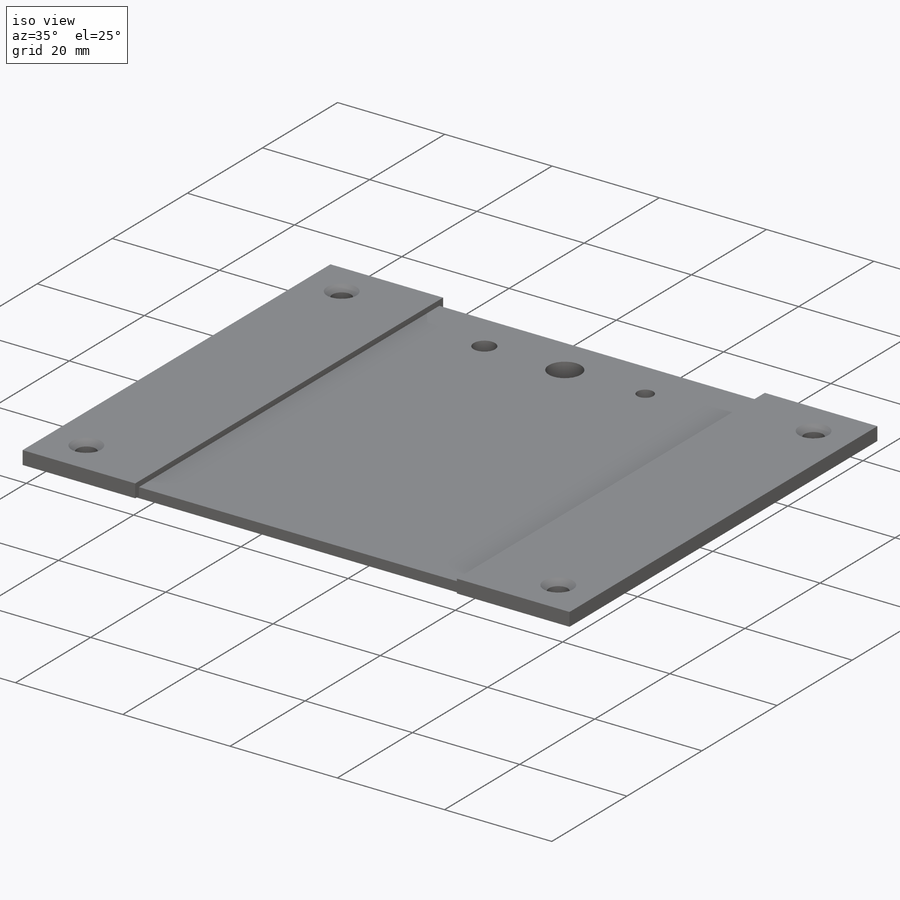
[diagram: iso view]
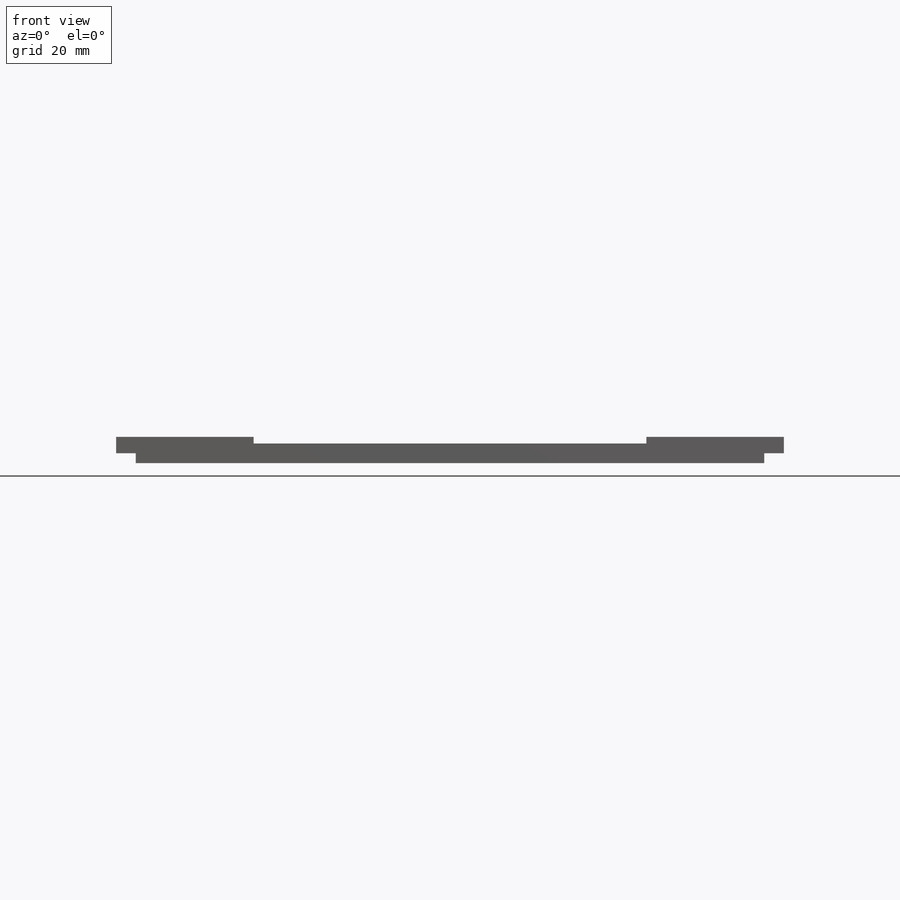
[diagram: front view]
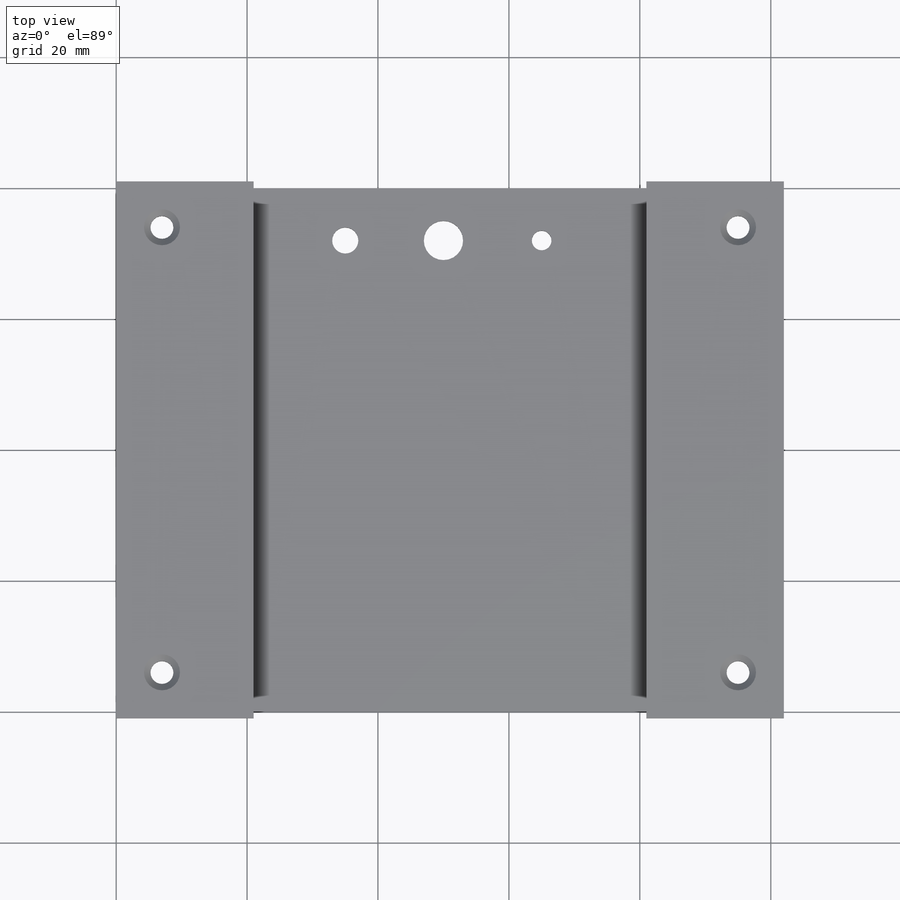
[diagram: top view]
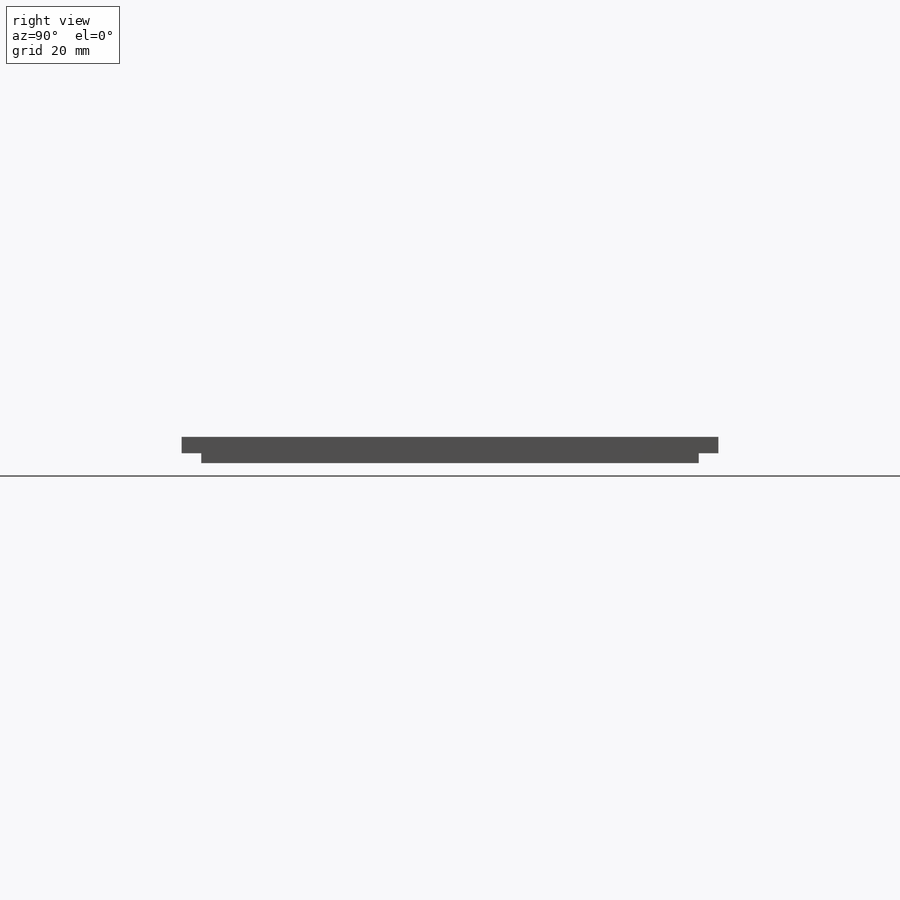
[diagram: right view]
SOLIDWORKS PART (.sldprt)
format: sldprt  version: not decoded by parser v0  size: 511,488 bytes
history: native  units: mm
features: sketch x6, extrude x5, plane x3, material x1, cut_extrude x1, chamfer x1 (+10 scaffold rows collapsed)
feature tree (27):
  scaffold x10  (default folders/planes/origin — collapsed)
  material  "Matériau <non spécifié>"
  plane  "Plan de face"
  plane  "Plan de dessus"
  plane  "Plan de droite"
  sketch  "Esquisse1"  dims[D1=102.0mm D2=80.0mm]
  extrude  "Boss.-Extru.1"  Depth=1.5mm
  sketch  "Esquisse2"  dims[D1=2.0mm D2=3.0mm D3=3.0mm D4=2.0mm]
  extrude  "Boss.-Extru.2"  Depth=1.5mm
  sketch  "Esquisse3"  dims[c1.D1=3.5mm c1.D2=3.5mm c1.D3=3.5mm c1.D4=3.5mm c1.D5=3.5mm c1.D6=3.5mm c1.D7=3.5mm c1.D8=3.5mm c1.D9=3.5mm c1.D10=3.5mm c1.D12=3.5mm c1.D13=4.0mm c1.D14=6.0mm c1.D15=3.0mm c1.D16=3.0mm c1.D17=3.0mm c1.D18=3.0mm c1.D19=3.0mm c1.D20=3.0mm c1.D21=3.0mm c2.D5=6.0mm c2.D6=7.0mm c2.D7=7.0mm c2.D8=6.0mm c2.D9=6.0mm c2.D10=7.0mm c2.D11=7.0mm c2.D12=6.0mm c2.D16=8.0mm c2.D17=8.0mm c2.D18=8.0mm c2.D19=15.0mm c2.D20=15.0mm c2.D21=35.0mm]
  cut_extrude  "Enlèv. mat.-Extru.1"  Depth=5mm
  sketch  "Esquisse6"  dims[c1.D1=3.5mm c1.D2=3.5mm c1.D3=3.5mm c1.D4=3.5mm c1.D5=3.5mm c1.D6=3.5mm c1.D7=3.5mm c1.D8=3.5mm c1.D9=3.5mm c1.D10=3.5mm c1.D12=3.5mm c1.D13=3.0mm c1.D14=3.0mm c1.D15=3.0mm c1.D16=3.0mm c1.D17=3.0mm c1.D18=3.0mm c1.D19=3.0mm c1.D20=3.0mm c1.D21=3.0mm c2.D5=6.0mm c2.D6=7.0mm c2.D7=7.0mm c2.D8=6.0mm c2.D9=6.0mm c2.D10=7.0mm c2.D11=7.0mm c2.D12=6.0mm c2.D16=20.0mm c2.D17=20.0mm c2.D18=20.0mm c2.D19=15.0mm c2.D20=15.0mm c2.D21=35.0mm c3.D5=21.0mm c3.D6=21.0mm]
  extrude  "Boss.-Extru.5"  Depth=1mm
  chamfer  "Chanfrein2"  Distance=1mm Angle=45deg
  sketch  "Esquisse7"
  extrude  "Boss.-Extru.6"  Depth=1mm
  sketch  "Esquisse8"
  extrude  "Boss.-Extru.7"  Depth=1mm
decode coverage: 11 of 13 modeling features carry decoded parameters
note: suppression state not decoded; provenance and decode notes live in map.json
